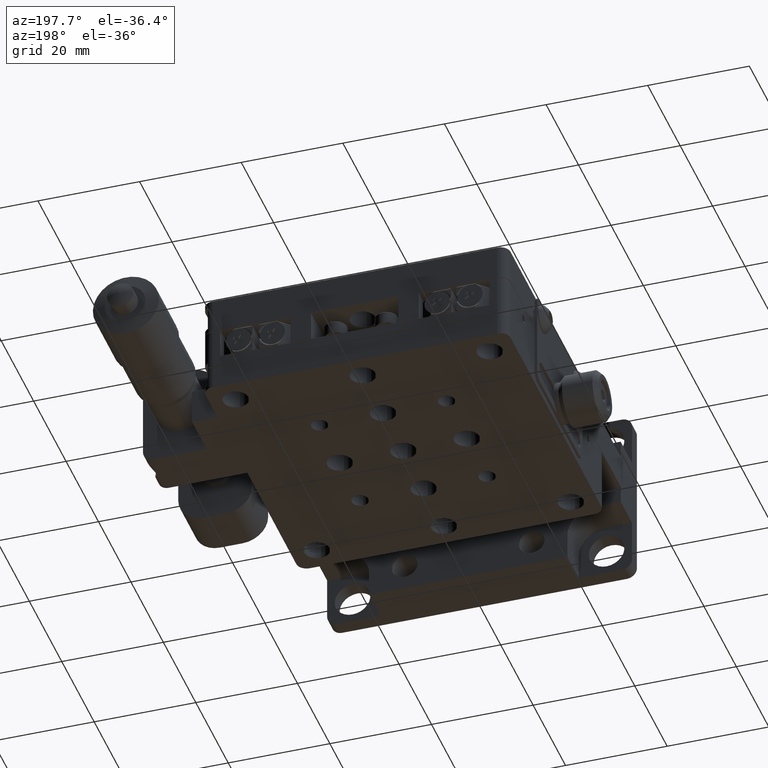
[diagram: clean part render]
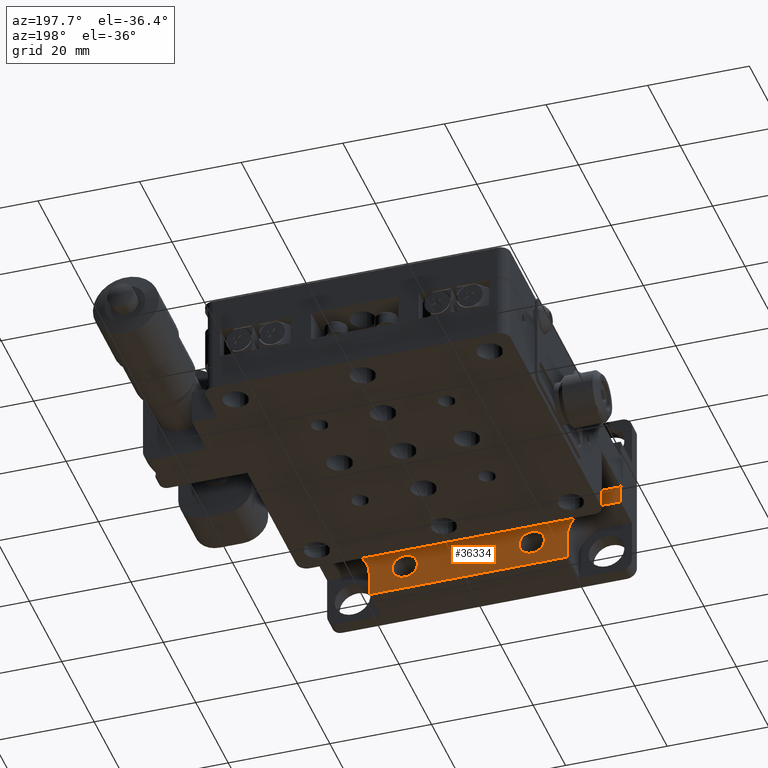
[diagram: same view with one face highlighted and labeled with its STEP entity id]
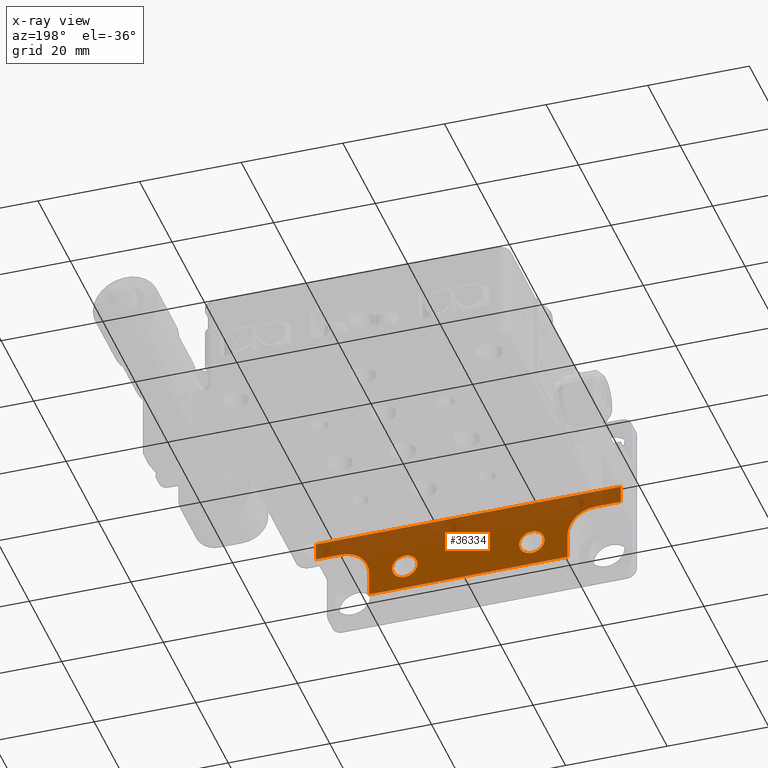
[diagram: x-ray of the same camera — body ghosted, the highlighted face saturated]
A machine part, auxiliary view. The second image highlights one B-rep face of the part: STEP entity #36334.
The next image is the same camera in x-ray: the body ghosted, the highlighted face saturated — about 43% of this face is hidden behind the body in this view.
In plain terms, the highlighted planar face has unit normal (0, -1, 0).
Its self-contained STEP definition (entity closure, byte-faithful):
#883 = ORIENTED_EDGE ( 'NONE', *, *, #12812, .F. ) ;
#988 = VERTEX_POINT ( 'NONE', #34656 ) ;
#1159 = DIRECTION ( 'NONE',  ( -7.633942006392911000E-016, 9.804398286584535200E-015, 1.000000000000000000 ) ) ;
#1360 = EDGE_CURVE ( 'NONE', #37757, #29942, #24174, .T. ) ;
#2060 = FACE_BOUND ( 'NONE', #36134, .T. ) ;
#2171 = CARTESIAN_POINT ( 'NONE',  ( -24.99999999999995000, -1.038199650417381200E-013, -12.49999999999998600 ) ) ;
#2718 = LINE ( 'NONE', #11327, #24732 ) ;
#3380 = CARTESIAN_POINT ( 'NONE',  ( 25.00000000000006800, -1.412899921228755200E-013, -12.50000000000003700 ) ) ;
#3640 = ORIENTED_EDGE ( 'NONE', *, *, #40510, .F. ) ;
#5741 = CARTESIAN_POINT ( 'NONE',  ( 12.50000000000005200, -1.319224853525910700E-013, -12.50000000000001200 ) ) ;
#6483 = CARTESIAN_POINT ( 'NONE',  ( 19.50000000000006400, -1.371682891439504100E-013, -12.50000000000003700 ) ) ;
#6674 = DIRECTION ( 'NONE',  ( 1.000000000000000000, -7.494005416227474400E-016, -1.008323560468758800E-015 ) ) ;
#7422 = CARTESIAN_POINT ( 'NONE',  ( 12.50000000000005200, -1.319224853525910700E-013, -12.50000000000001200 ) ) ;
#8181 = CARTESIAN_POINT ( 'NONE',  ( 12.50000000000005300, -1.564334810690524900E-013, -15.00000000000002100 ) ) ;
#8626 = ORIENTED_EDGE ( 'NONE', *, *, #14864, .F. ) ;
#10091 = DIRECTION ( 'NONE',  ( 7.633942006392911000E-016, -9.804398286584535200E-015, -1.000000000000000000 ) ) ;
#10906 = VERTEX_POINT ( 'NONE', #23953 ) ;
#11327 = CARTESIAN_POINT ( 'NONE',  ( -19.49999999999997200, -1.569636594535861800E-013, -17.50000000000002500 ) ) ;
#11654 = AXIS2_PLACEMENT_3D ( 'NONE', #7422, #39579, #15844 ) ;
#11748 = LINE ( 'NONE', #50998, #46147 ) ;
#12069 = ORIENTED_EDGE ( 'NONE', *, *, #47393, .F. ) ;
#12298 = VERTEX_POINT ( 'NONE', #39507 ) ;
#12680 = CIRCLE ( 'NONE', #28167, 2.500000000000009300 ) ;
#12812 = EDGE_CURVE ( 'NONE', #12298, #19555, #45352, .T. ) ;
#13172 = ORIENTED_EDGE ( 'NONE', *, *, #24860, .F. ) ;
#13581 = CARTESIAN_POINT ( 'NONE',  ( -24.99999999999999300, -4.989577446552302400E-014, -6.999999999999977800 ) ) ;
#14864 = EDGE_CURVE ( 'NONE', #56714, #988, #25490, .T. ) ;
#15031 = DIRECTION ( 'NONE',  ( 1.000000000000000000, -7.494005416227474400E-016, -1.008323560468758800E-015 ) ) ;
#15375 = CARTESIAN_POINT ( 'NONE',  ( -30.00000000000000000, -1.183337775436374900E-014, -3.499999999999997800 ) ) ;
#15534 = VERTEX_POINT ( 'NONE', #6483 ) ;
#15677 = EDGE_CURVE ( 'NONE', #44211, #15534, #11748, .T. ) ;
#15844 = DIRECTION ( 'NONE',  ( 6.938893903907202700E-016, -9.804398286584530500E-015, -1.000000000000000000 ) ) ;
#16110 = ORIENTED_EDGE ( 'NONE', *, *, #50508, .F. ) ;
#16331 = VERTEX_POINT ( 'NONE', #15375 ) ;
#17143 = DIRECTION ( 'NONE',  ( -7.494005416227522700E-016, 1.000000000000000000, 7.407882006856690300E-015 ) ) ;
#17357 = ORIENTED_EDGE ( 'NONE', *, *, #15677, .F. ) ;
#18264 = EDGE_CURVE ( 'NONE', #16331, #59118, #52698, .T. ) ;
#18286 = ORIENTED_EDGE ( 'NONE', *, *, #19834, .F. ) ;
#18632 = DIRECTION ( 'NONE',  ( 7.494005416227391500E-016, -1.000000000000000000, 9.804398286584535200E-015 ) ) ;
#18633 = AXIS2_PLACEMENT_3D ( 'NONE', #5741, #39084, #43185 ) ;
#18920 = AXIS2_PLACEMENT_3D ( 'NONE', #41938, #18632, #51299 ) ;
#19087 = DIRECTION ( 'NONE',  ( -1.000000000000000000, 7.494005416227493100E-016, 1.239620023932333000E-015 ) ) ;
#19555 = VERTEX_POINT ( 'NONE', #21657 ) ;
#19834 = EDGE_CURVE ( 'NONE', #29942, #37757, #56246, .T. ) ;
#21657 = CARTESIAN_POINT ( 'NONE',  ( 30.00000000000005300, -5.679741025172867100E-014, -3.500000000000063900 ) ) ;
#21935 = DIRECTION ( 'NONE',  ( 6.938893903907202700E-016, -9.804398286584540000E-015, -1.000000000000000000 ) ) ;
#22082 = VERTEX_POINT ( 'NONE', #34064 ) ;
#22296 = LINE ( 'NONE', #37678, #33194 ) ;
#22672 = DIRECTION ( 'NONE',  ( -7.633942006392911000E-016, 9.804398286584535200E-015, 1.000000000000000000 ) ) ;
#23657 = CARTESIAN_POINT ( 'NONE',  ( -12.50000000000001200, -1.131874718120229200E-013, -12.50000000000005200 ) ) ;
#23953 = CARTESIAN_POINT ( 'NONE',  ( -24.99999999999999300, -4.989577446552302400E-014, -6.999999999999977800 ) ) ;
#24174 = CIRCLE ( 'NONE', #18633, 2.500000000000009300 ) ;
#24732 = VECTOR ( 'NONE', #15031, 1000.000000000000000 ) ;
#24860 = EDGE_CURVE ( 'NONE', #19555, #16331, #22296, .T. ) ;
#24948 = VECTOR ( 'NONE', #1159, 1000.000000000000000 ) ;
#25490 = LINE ( 'NONE', #33417, #27623 ) ;
#27435 = ORIENTED_EDGE ( 'NONE', *, *, #18264, .F. ) ;
#27623 = VECTOR ( 'NONE', #10091, 1000.000000000000000 ) ;
#27980 = AXIS2_PLACEMENT_3D ( 'NONE', #23657, #52191, #28932 ) ;
#28167 = AXIS2_PLACEMENT_3D ( 'NONE', #45023, #31292, #21935 ) ;
#28932 = DIRECTION ( 'NONE',  ( 6.938893903907202700E-016, -9.804398286584540000E-015, -1.000000000000000000 ) ) ;
#29942 = VERTEX_POINT ( 'NONE', #57188 ) ;
#31024 = DIRECTION ( 'NONE',  ( -6.308085367188367600E-016, 9.804398286584533700E-015, 1.000000000000000000 ) ) ;
#31292 = DIRECTION ( 'NONE',  ( -7.494005416227522700E-016, 1.000000000000000000, 7.407882006856690300E-015 ) ) ;
#31377 = CIRCLE ( 'NONE', #35086, 5.500000000000018700 ) ;
#33194 = VECTOR ( 'NONE', #19087, 1000.000000000000000 ) ;
#33250 = VECTOR ( 'NONE', #36906, 1000.000000000000000 ) ;
#33393 = ORIENTED_EDGE ( 'NONE', *, *, #1360, .F. ) ;
#33417 = CARTESIAN_POINT ( 'NONE',  ( -19.49999999999997200, -1.079416680206632000E-013, -12.49999999999998600 ) ) ;
#33748 = VECTOR ( 'NONE', #6674, 1000.000000000000000 ) ;
#34064 = CARTESIAN_POINT ( 'NONE',  ( -12.50000000000001100, -1.376984675284843600E-013, -15.00000000000006000 ) ) ;
#34656 = CARTESIAN_POINT ( 'NONE',  ( -19.49999999999997200, -1.569636594535861800E-013, -17.50000000000002500 ) ) ;
#34666 = EDGE_CURVE ( 'NONE', #38280, #12298, #58554, .T. ) ;
#34715 = CARTESIAN_POINT ( 'NONE',  ( 25.00000000000002100, -8.736580154666017500E-014, -6.999999999999992900 ) ) ;
#35079 = CARTESIAN_POINT ( 'NONE',  ( 19.50000000000006400, -1.861902805768731200E-013, -17.50000000000003200 ) ) ;
#35086 = AXIS2_PLACEMENT_3D ( 'NONE', #3380, #36129, #31024 ) ;
#36129 = DIRECTION ( 'NONE',  ( -7.494005416227522700E-016, 1.000000000000000000, 7.407882006856690300E-015 ) ) ;
#36134 = EDGE_LOOP ( 'NONE', ( #16110, #58185 ) ) ;
#36295 = CARTESIAN_POINT ( 'NONE',  ( -30.00000000000000000, -4.614877175740941700E-014, -6.999999999999979600 ) ) ;
#36334 = ADVANCED_FACE ( 'NONE', ( #2060, #52520, #40915 ), #55418, .F. ) ;
#36906 = DIRECTION ( 'NONE',  ( 1.000000000000000000, -7.494005416227201200E-016, 1.767234001094131700E-015 ) ) ;
#37678 = CARTESIAN_POINT ( 'NONE',  ( -30.00000000000000000, -1.183337775436374900E-014, -3.499999999999997800 ) ) ;
#37757 = VERTEX_POINT ( 'NONE', #8181 ) ;
#38280 = VERTEX_POINT ( 'NONE', #38375 ) ;
#38375 = CARTESIAN_POINT ( 'NONE',  ( 25.00000000000002100, -8.736580154666032700E-014, -7.000000000000007100 ) ) ;
#39084 = DIRECTION ( 'NONE',  ( -7.494005416227522700E-016, 1.000000000000000000, 7.407882006856690300E-015 ) ) ;
#39507 = CARTESIAN_POINT ( 'NONE',  ( 30.00000000000005300, -9.111280425477397900E-014, -7.000000000000005300 ) ) ;
#39579 = DIRECTION ( 'NONE',  ( -7.494005416227522700E-016, 1.000000000000000000, 7.407882006856690300E-015 ) ) ;
#39635 = CIRCLE ( 'NONE', #45922, 5.499999999999998200 ) ;
#40510 = EDGE_CURVE ( 'NONE', #15534, #38280, #31377, .T. ) ;
#40658 = DIRECTION ( 'NONE',  ( -6.308085367188391200E-016, 9.804398286584535200E-015, 1.000000000000000000 ) ) ;
#40915 = FACE_OUTER_BOUND ( 'NONE', #54202, .T. ) ;
#41321 = LINE ( 'NONE', #13581, #33250 ) ;
#41938 = CARTESIAN_POINT ( 'NONE',  ( -24.99999999999995000, -1.038199650417381200E-013, -12.49999999999998600 ) ) ;
#41967 = CARTESIAN_POINT ( 'NONE',  ( -19.49999999999995000, -1.079416680206632300E-013, -12.49999999999998800 ) ) ;
#43185 = DIRECTION ( 'NONE',  ( 6.938893903907202700E-016, -9.804398286584530500E-015, -1.000000000000000000 ) ) ;
#44211 = VERTEX_POINT ( 'NONE', #35079 ) ;
#44815 = EDGE_CURVE ( 'NONE', #51721, #22082, #12680, .T. ) ;
#45023 = CARTESIAN_POINT ( 'NONE',  ( -12.50000000000001200, -1.131874718120229200E-013, -12.50000000000005200 ) ) ;
#45352 = LINE ( 'NONE', #57225, #24948 ) ;
#45922 = AXIS2_PLACEMENT_3D ( 'NONE', #2171, #17143, #40658 ) ;
#46147 = VECTOR ( 'NONE', #22672, 1000.000000000000000 ) ;
#47393 = EDGE_CURVE ( 'NONE', #10906, #56714, #39635, .T. ) ;
#50508 = EDGE_CURVE ( 'NONE', #22082, #51721, #54700, .T. ) ;
#50574 = EDGE_CURVE ( 'NONE', #988, #44211, #2718, .T. ) ;
#50998 = CARTESIAN_POINT ( 'NONE',  ( 19.50000000000006400, -1.371682891439504100E-013, -12.50000000000003700 ) ) ;
#51299 = DIRECTION ( 'NONE',  ( -7.633942006392911000E-016, 9.804398286584535200E-015, 1.000000000000000000 ) ) ;
#51721 = VERTEX_POINT ( 'NONE', #53393 ) ;
#51952 = ORIENTED_EDGE ( 'NONE', *, *, #50574, .F. ) ;
#52191 = DIRECTION ( 'NONE',  ( -7.494005416227522700E-016, 1.000000000000000000, 7.407882006856690300E-015 ) ) ;
#52520 = FACE_BOUND ( 'NONE', #57415, .T. ) ;
#52698 = LINE ( 'NONE', #55310, #57107 ) ;
#53393 = CARTESIAN_POINT ( 'NONE',  ( -12.50000000000001800, -1.317071768291647400E-013, -10.00000000000004300 ) ) ;
#53692 = ORIENTED_EDGE ( 'NONE', *, *, #53818, .F. ) ;
#53818 = EDGE_CURVE ( 'NONE', #59118, #10906, #41321, .T. ) ;
#54202 = EDGE_LOOP ( 'NONE', ( #13172, #883, #55899, #3640, #17357, #51952, #8626, #12069, #53692, #27435 ) ) ;
#54700 = CIRCLE ( 'NONE', #27980, 2.500000000000009300 ) ;
#55310 = CARTESIAN_POINT ( 'NONE',  ( -30.00000000000000000, 9.111280425477419300E-014, 7.000000000000032900 ) ) ;
#55418 = PLANE ( 'NONE',  #18920 ) ;
#55899 = ORIENTED_EDGE ( 'NONE', *, *, #34666, .F. ) ;
#56246 = CIRCLE ( 'NONE', #11654, 2.500000000000009300 ) ;
#56714 = VERTEX_POINT ( 'NONE', #41967 ) ;
#57107 = VECTOR ( 'NONE', #60165, 1000.000000000000000 ) ;
#57188 = CARTESIAN_POINT ( 'NONE',  ( 12.50000000000004600, -1.504421903697328800E-013, -10.00000000000000400 ) ) ;
#57225 = CARTESIAN_POINT ( 'NONE',  ( 30.00000000000005300, 4.614877175740907600E-014, 6.999999999999951200 ) ) ;
#57415 = EDGE_LOOP ( 'NONE', ( #33393, #18286 ) ) ;
#58185 = ORIENTED_EDGE ( 'NONE', *, *, #44815, .F. ) ;
#58554 = LINE ( 'NONE', #34715, #33748 ) ;
#59118 = VERTEX_POINT ( 'NONE', #36295 ) ;
#60165 = DIRECTION ( 'NONE',  ( 7.633942006392911000E-016, -9.804398286584535200E-015, -1.000000000000000000 ) ) ;